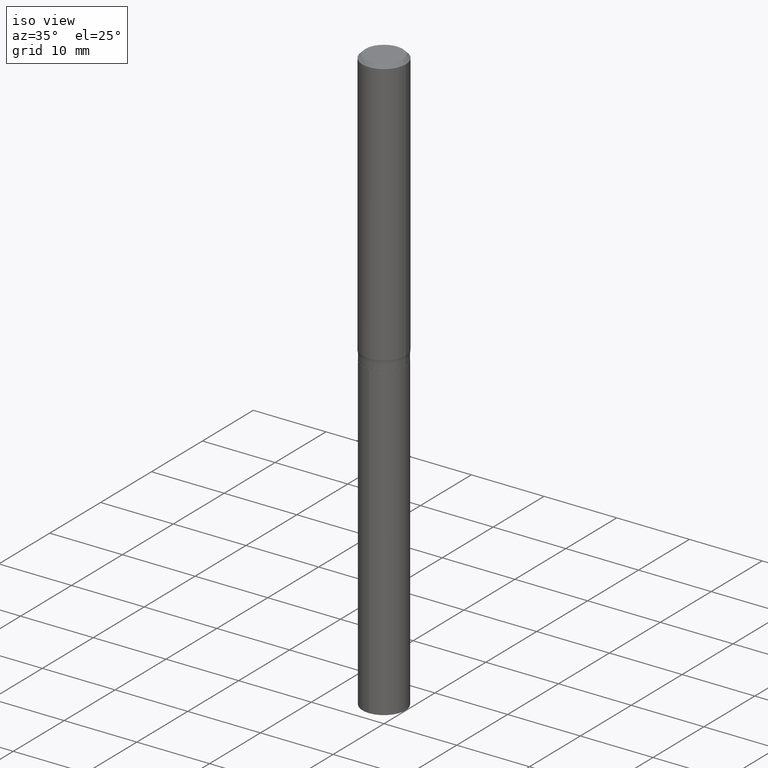
[diagram: clean part render]
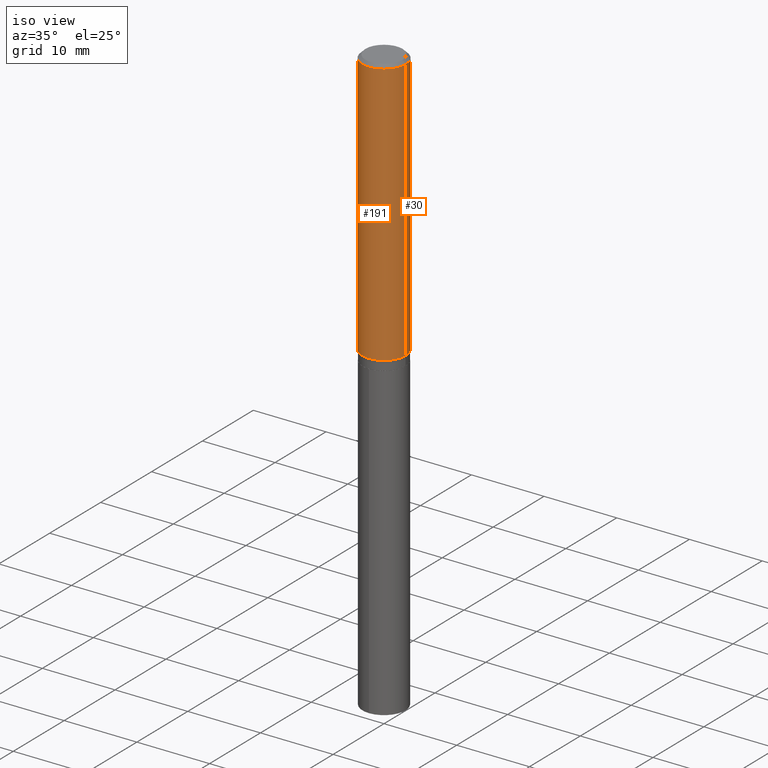
[diagram: same view with one multi-face feature highlighted, each face labeled with its STEP entity id]
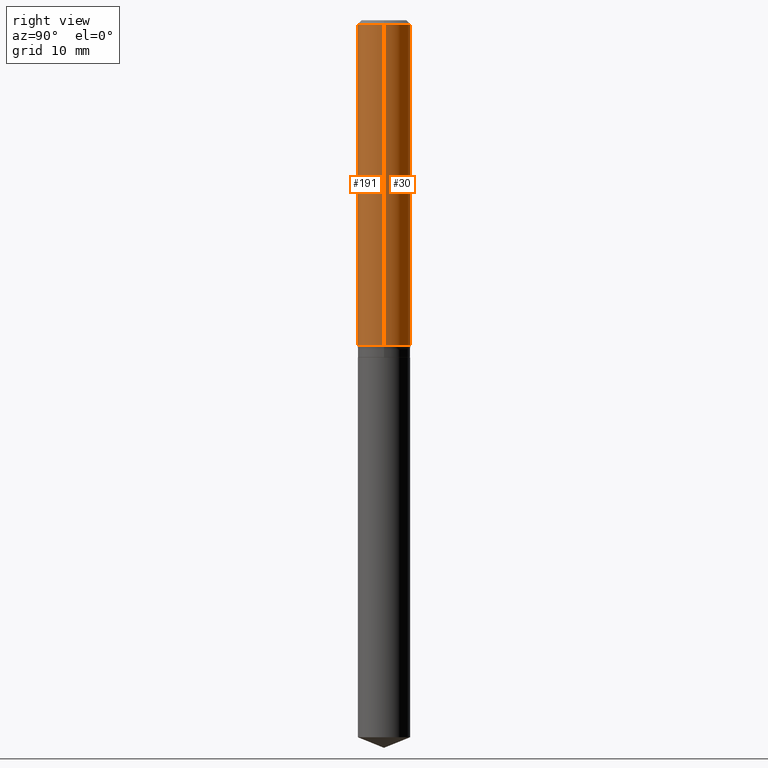
[diagram: same view with one multi-face feature highlighted, each face labeled with its STEP entity id]
A machine part, iso view. The highlighted faces form ONE feature: a constant-radius fillet chain: 2 tangent blend faces with common blend radius 2.9997 mm. The faces share edges in the B-rep.
A second angle (right view) of the same feature is appended — it is thin or edge-on in the first view.
Their STEP definitions:
[1] entity #30 (Cylinder):
#3 = DIRECTION ( 'NONE',  ( -2.445468806185136877E-29, 3.491481338843145188E-15, 1.000000000000000000 ) ) ;
#10 = EDGE_CURVE ( 'NONE', #384, #407, #182, .T. ) ;
#30 = ADVANCED_FACE ( 'NONE', ( #303 ), #486, .T. ) ;
#41 = LINE ( 'NONE', #328, #265 ) ;
#89 = ORIENTED_EDGE ( 'NONE', *, *, #10, .T. ) ;
#126 = DIRECTION ( 'NONE',  ( 1.000000000000000000, -6.982962677686266711E-15, 4.876176775795935793E-29 ) ) ;
#128 = AXIS2_PLACEMENT_3D ( 'NONE', #219, #377, #126 ) ;
#147 = DIRECTION ( 'NONE',  ( -2.445468806185136597E-29, 3.491481338843145583E-15, 1.000000000000000000 ) ) ;
#153 = VERTEX_POINT ( 'NONE', #336 ) ;
#157 = CIRCLE ( 'NONE', #322, 0.1180999999999999966 ) ;
#169 = DIRECTION ( 'NONE',  ( 1.000000000000000000, -6.982962677686269077E-15, 0.000000000000000000 ) ) ;
#182 = LINE ( 'NONE', #386, #284 ) ;
#189 = CARTESIAN_POINT ( 'NONE',  ( -0.1180999999999999966, -1.711870228163632299E-15, -0.01771500000000010913 ) ) ;
#196 = ORIENTED_EDGE ( 'NONE', *, *, #228, .T. ) ;
#219 = CARTESIAN_POINT ( 'NONE',  ( 0.000000000000000000, 0.000000000000000000, 0.000000000000000000 ) ) ;
#228 = EDGE_CURVE ( 'NONE', #153, #384, #247, .T. ) ;
#229 = EDGE_LOOP ( 'NONE', ( #196, #89, #351, #437 ) ) ;
#247 = CIRCLE ( 'NONE', #441, 0.1181000000000001909 ) ;
#265 = VECTOR ( 'NONE', #363, 39.37007874015748143 ) ;
#284 = VECTOR ( 'NONE', #3, 39.37007874015748143 ) ;
#288 = EDGE_CURVE ( 'NONE', #153, #352, #41, .T. ) ;
#292 = DIRECTION ( 'NONE',  ( -2.445468806185136597E-29, 3.491481338843145583E-15, 1.000000000000000000 ) ) ;
#300 = DIRECTION ( 'NONE',  ( 1.000000000000000000, -6.982962677686266711E-15, 0.000000000000000000 ) ) ;
#303 = FACE_OUTER_BOUND ( 'NONE', #229, .T. ) ;
#322 = AXIS2_PLACEMENT_3D ( 'NONE', #489, #147, #300 ) ;
#326 = CARTESIAN_POINT ( 'NONE',  ( 3.530200564683698665E-29, -5.040190806275017950E-15, -1.443568020886233816 ) ) ;
#328 = CARTESIAN_POINT ( 'NONE',  ( 0.1181000000000001077, -8.246878922347488542E-16, 5.758764772215005345E-30 ) ) ;
#336 = CARTESIAN_POINT ( 'NONE',  ( 0.1181000000000002048, -5.864878698509767790E-15, -1.443568020886233816 ) ) ;
#351 = ORIENTED_EDGE ( 'NONE', *, *, #356, .F. ) ;
#352 = VERTEX_POINT ( 'NONE', #457 ) ;
#356 = EDGE_CURVE ( 'NONE', #352, #407, #157, .T. ) ;
#363 = DIRECTION ( 'NONE',  ( -2.445468806185136877E-29, 3.491481338843145188E-15, 1.000000000000000000 ) ) ;
#377 = DIRECTION ( 'NONE',  ( -2.445468806185136597E-29, 3.491481338843145583E-15, 1.000000000000000000 ) ) ;
#384 = VERTEX_POINT ( 'NONE', #422 ) ;
#386 = CARTESIAN_POINT ( 'NONE',  ( -0.1181000000000001077, 8.391509709326790846E-16, -5.809262341591049389E-30 ) ) ;
#407 = VERTEX_POINT ( 'NONE', #189 ) ;
#422 = CARTESIAN_POINT ( 'NONE',  ( -0.1181000000000002048, -4.201039835342338175E-15, -1.443568020886233816 ) ) ;
#437 = ORIENTED_EDGE ( 'NONE', *, *, #288, .F. ) ;
#441 = AXIS2_PLACEMENT_3D ( 'NONE', #326, #292, #169 ) ;
#457 = CARTESIAN_POINT ( 'NONE',  ( 0.1180999999999999966, -8.865394841523547570E-16, -0.01771500000000010913 ) ) ;
#486 = CYLINDRICAL_SURFACE ( 'NONE', #128, 0.1181000000000001077 ) ;
#489 = CARTESIAN_POINT ( 'NONE',  ( 4.332147990156995868E-31, -6.185159191760670395E-17, -0.01771500000000010913 ) ) ;
[2] entity #191 (Cylinder):
#2 = FACE_OUTER_BOUND ( 'NONE', #115, .T. ) ;
#3 = DIRECTION ( 'NONE',  ( -2.445468806185136877E-29, 3.491481338843145188E-15, 1.000000000000000000 ) ) ;
#10 = EDGE_CURVE ( 'NONE', #384, #407, #182, .T. ) ;
#41 = LINE ( 'NONE', #328, #265 ) ;
#46 = CYLINDRICAL_SURFACE ( 'NONE', #379, 0.1181000000000001077 ) ;
#74 = ORIENTED_EDGE ( 'NONE', *, *, #398, .F. ) ;
#90 = CIRCLE ( 'NONE', #129, 0.1180999999999999966 ) ;
#95 = EDGE_CURVE ( 'NONE', #384, #153, #127, .T. ) ;
#113 = ORIENTED_EDGE ( 'NONE', *, *, #288, .T. ) ;
#115 = EDGE_LOOP ( 'NONE', ( #343, #192, #113, #74 ) ) ;
#127 = CIRCLE ( 'NONE', #395, 0.1181000000000001909 ) ;
#129 = AXIS2_PLACEMENT_3D ( 'NONE', #349, #155, #200 ) ;
#153 = VERTEX_POINT ( 'NONE', #336 ) ;
#155 = DIRECTION ( 'NONE',  ( -2.445468806185136597E-29, 3.491481338843145583E-15, 1.000000000000000000 ) ) ;
#182 = LINE ( 'NONE', #386, #284 ) ;
#183 = DIRECTION ( 'NONE',  ( -2.445468806185136597E-29, 3.491481338843145583E-15, 1.000000000000000000 ) ) ;
#188 = CARTESIAN_POINT ( 'NONE',  ( 0.000000000000000000, 0.000000000000000000, 0.000000000000000000 ) ) ;
#189 = CARTESIAN_POINT ( 'NONE',  ( -0.1180999999999999966, -1.711870228163632299E-15, -0.01771500000000010913 ) ) ;
#191 = ADVANCED_FACE ( 'NONE', ( #2 ), #46, .T. ) ;
#192 = ORIENTED_EDGE ( 'NONE', *, *, #95, .T. ) ;
#194 = CARTESIAN_POINT ( 'NONE',  ( 3.530200564683698665E-29, -5.040190806275017950E-15, -1.443568020886233816 ) ) ;
#200 = DIRECTION ( 'NONE',  ( 1.000000000000000000, -6.982962677686266711E-15, 0.000000000000000000 ) ) ;
#230 = DIRECTION ( 'NONE',  ( -2.445468806185136597E-29, 3.491481338843145583E-15, 1.000000000000000000 ) ) ;
#265 = VECTOR ( 'NONE', #363, 39.37007874015748143 ) ;
#267 = DIRECTION ( 'NONE',  ( 1.000000000000000000, -6.982962677686266711E-15, 4.876176775795935793E-29 ) ) ;
#284 = VECTOR ( 'NONE', #3, 39.37007874015748143 ) ;
#288 = EDGE_CURVE ( 'NONE', #153, #352, #41, .T. ) ;
#328 = CARTESIAN_POINT ( 'NONE',  ( 0.1181000000000001077, -8.246878922347488542E-16, 5.758764772215005345E-30 ) ) ;
#336 = CARTESIAN_POINT ( 'NONE',  ( 0.1181000000000002048, -5.864878698509767790E-15, -1.443568020886233816 ) ) ;
#343 = ORIENTED_EDGE ( 'NONE', *, *, #10, .F. ) ;
#346 = DIRECTION ( 'NONE',  ( 1.000000000000000000, -6.982962677686269077E-15, 0.000000000000000000 ) ) ;
#349 = CARTESIAN_POINT ( 'NONE',  ( 4.332147990156995868E-31, -6.185159191760670395E-17, -0.01771500000000010913 ) ) ;
#352 = VERTEX_POINT ( 'NONE', #457 ) ;
#363 = DIRECTION ( 'NONE',  ( -2.445468806185136877E-29, 3.491481338843145188E-15, 1.000000000000000000 ) ) ;
#379 = AXIS2_PLACEMENT_3D ( 'NONE', #188, #183, #267 ) ;
#384 = VERTEX_POINT ( 'NONE', #422 ) ;
#386 = CARTESIAN_POINT ( 'NONE',  ( -0.1181000000000001077, 8.391509709326790846E-16, -5.809262341591049389E-30 ) ) ;
#395 = AXIS2_PLACEMENT_3D ( 'NONE', #194, #230, #346 ) ;
#398 = EDGE_CURVE ( 'NONE', #407, #352, #90, .T. ) ;
#407 = VERTEX_POINT ( 'NONE', #189 ) ;
#422 = CARTESIAN_POINT ( 'NONE',  ( -0.1181000000000002048, -4.201039835342338175E-15, -1.443568020886233816 ) ) ;
#457 = CARTESIAN_POINT ( 'NONE',  ( 0.1180999999999999966, -8.865394841523547570E-16, -0.01771500000000010913 ) ) ;